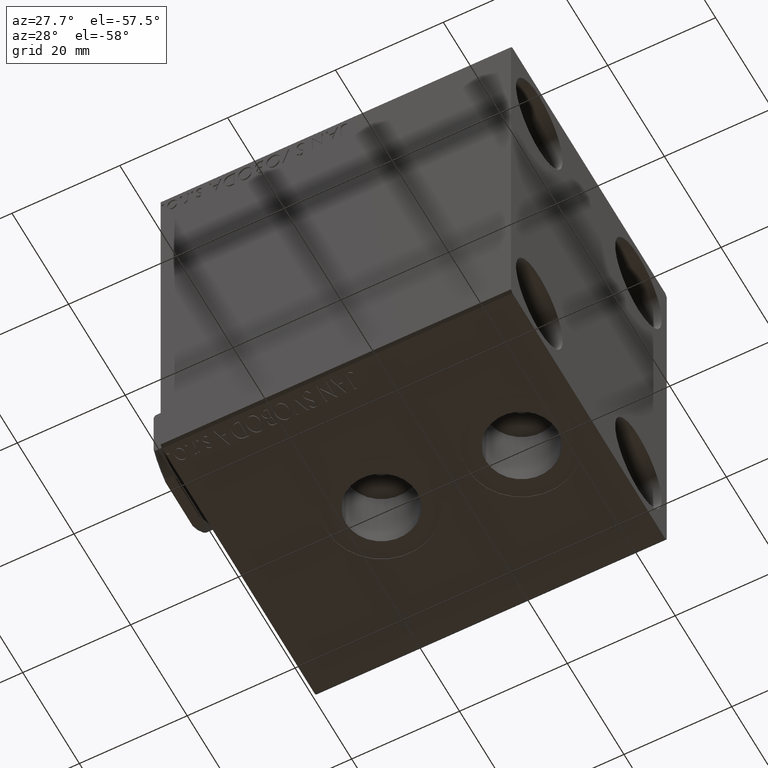
[diagram: clean part render]
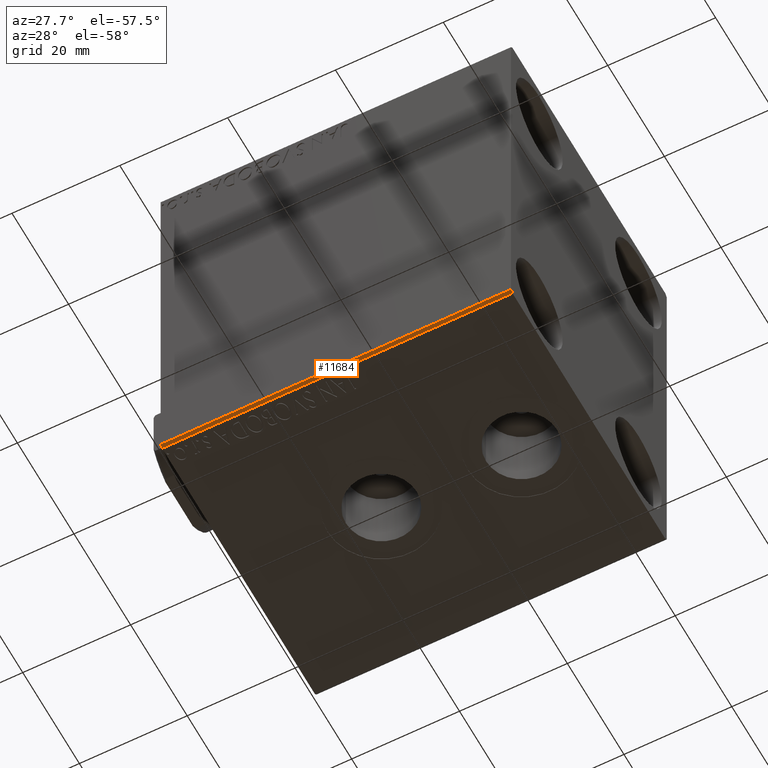
[diagram: same view with one face highlighted and labeled with its STEP entity id]
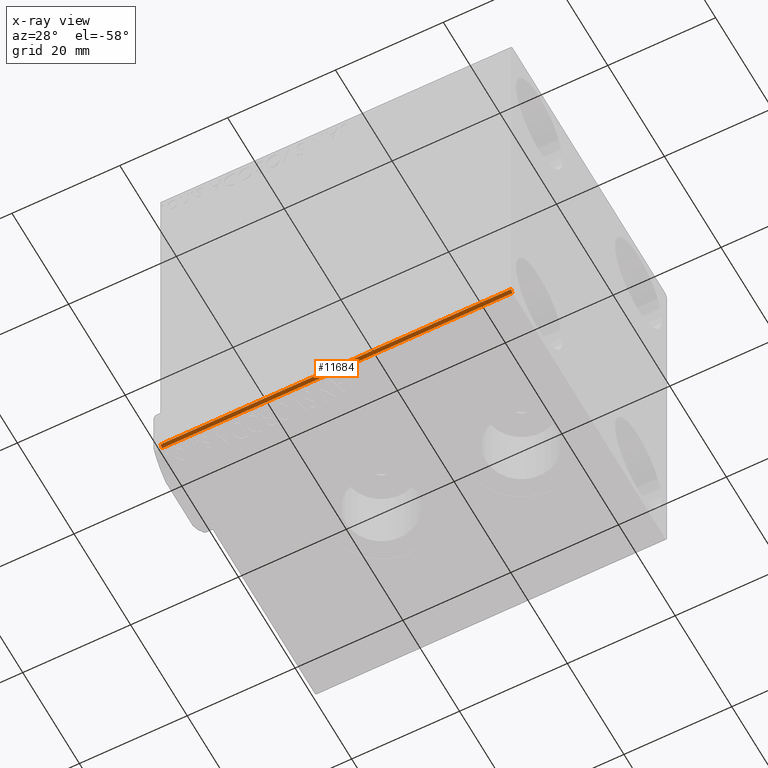
[diagram: x-ray of the same camera — body ghosted, the highlighted face saturated]
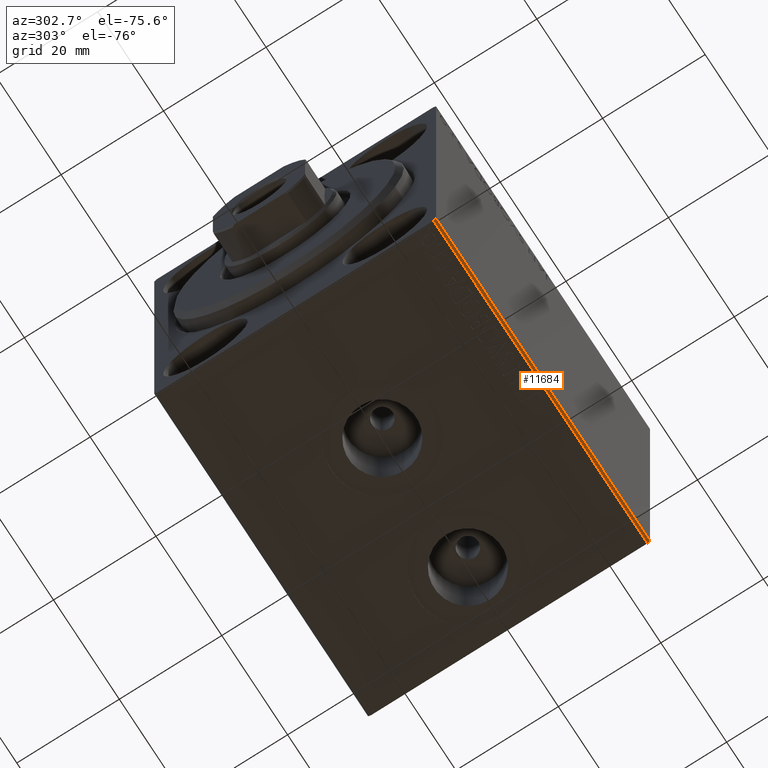
[diagram: same view with one face highlighted and labeled with its STEP entity id]
A machine part, auxiliary view. The second image highlights one B-rep face of the part: STEP entity #11684.
The next image is the same camera in x-ray: the body ghosted, the highlighted face saturated — about 0% of this face is hidden behind the body in this view.
A second angle (auxiliary view) of the same face is appended — the face is thin or edge-on in the first view.
In plain terms, the highlighted planar face has unit normal (0, 0.7071, 0.7071).
Its self-contained STEP definition (entity closure, byte-faithful):
#2191 = EDGE_CURVE ( 'NONE', #22721, #31319, #5684, .T. ) ;
#2753 = DIRECTION ( 'NONE',  ( -1.000000000000000000, 0.000000000000000000, 0.000000000000000000 ) ) ;
#3555 = CARTESIAN_POINT ( 'NONE',  ( 65.00000000000000000, -27.00000000000000355, -37.50000000000000000 ) ) ;
#5626 = ORIENTED_EDGE ( 'NONE', *, *, #8123, .F. ) ;
#5684 = LINE ( 'NONE', #26366, #39597 ) ;
#8123 = EDGE_CURVE ( 'NONE', #42733, #16134, #12546, .T. ) ;
#10228 = PLANE ( 'NONE',  #19124 ) ;
#11337 = EDGE_CURVE ( 'NONE', #16134, #22721, #25487, .T. ) ;
#11684 = ADVANCED_FACE ( 'NONE', ( #17130 ), #10228, .F. ) ;
#12546 = LINE ( 'NONE', #33471, #19728 ) ;
#12733 = ORIENTED_EDGE ( 'NONE', *, *, #26525, .F. ) ;
#12923 = CARTESIAN_POINT ( 'NONE',  ( 0.000000000000000000, -27.50000000000000355, -37.00000000000000000 ) ) ;
#15876 = CARTESIAN_POINT ( 'NONE',  ( 65.00000000000000000, -27.50000000000000355, -37.00000000000000000 ) ) ;
#16134 = VERTEX_POINT ( 'NONE', #21126 ) ;
#17130 = FACE_OUTER_BOUND ( 'NONE', #34379, .T. ) ;
#18816 = CARTESIAN_POINT ( 'NONE',  ( 0.000000000000000000, -27.00000000000000355, -37.50000000000000000 ) ) ;
#19124 = AXIS2_PLACEMENT_3D ( 'NONE', #3555, #30698, #23796 ) ;
#19469 = CARTESIAN_POINT ( 'NONE',  ( 65.00000000000000000, -27.00000000000000355, -37.50000000000000000 ) ) ;
#19692 = DIRECTION ( 'NONE',  ( -0.000000000000000000, -0.7071067811865474617, 0.7071067811865474617 ) ) ;
#19728 = VECTOR ( 'NONE', #2753, 1000.000000000000000 ) ;
#21126 = CARTESIAN_POINT ( 'NONE',  ( 0.000000000000000000, -27.00000000000000355, -37.50000000000000000 ) ) ;
#21338 = LINE ( 'NONE', #34897, #37337 ) ;
#22721 = VERTEX_POINT ( 'NONE', #12923 ) ;
#23796 = DIRECTION ( 'NONE',  ( -1.000000000000000000, -0.000000000000000000, 0.000000000000000000 ) ) ;
#24785 = ORIENTED_EDGE ( 'NONE', *, *, #11337, .F. ) ;
#25487 = LINE ( 'NONE', #18816, #36875 ) ;
#26366 = CARTESIAN_POINT ( 'NONE',  ( 65.00000000000000000, -27.50000000000000355, -37.00000000000000000 ) ) ;
#26525 = EDGE_CURVE ( 'NONE', #31319, #42733, #21338, .T. ) ;
#30698 = DIRECTION ( 'NONE',  ( 0.000000000000000000, 0.7071067811865475727, 0.7071067811865475727 ) ) ;
#31319 = VERTEX_POINT ( 'NONE', #15876 ) ;
#31588 = ORIENTED_EDGE ( 'NONE', *, *, #2191, .F. ) ;
#32001 = DIRECTION ( 'NONE',  ( -0.000000000000000000, 0.7071067811865474617, -0.7071067811865474617 ) ) ;
#33471 = CARTESIAN_POINT ( 'NONE',  ( 65.00000000000000000, -27.00000000000000355, -37.50000000000000000 ) ) ;
#34379 = EDGE_LOOP ( 'NONE', ( #12733, #31588, #24785, #5626 ) ) ;
#34897 = CARTESIAN_POINT ( 'NONE',  ( 65.00000000000000000, -32.25000000000000000, -32.25000000000000000 ) ) ;
#36875 = VECTOR ( 'NONE', #19692, 1000.000000000000114 ) ;
#37337 = VECTOR ( 'NONE', #32001, 1000.000000000000114 ) ;
#39597 = VECTOR ( 'NONE', #39943, 1000.000000000000000 ) ;
#39943 = DIRECTION ( 'NONE',  ( 1.000000000000000000, 0.000000000000000000, 0.000000000000000000 ) ) ;
#42733 = VERTEX_POINT ( 'NONE', #19469 ) ;